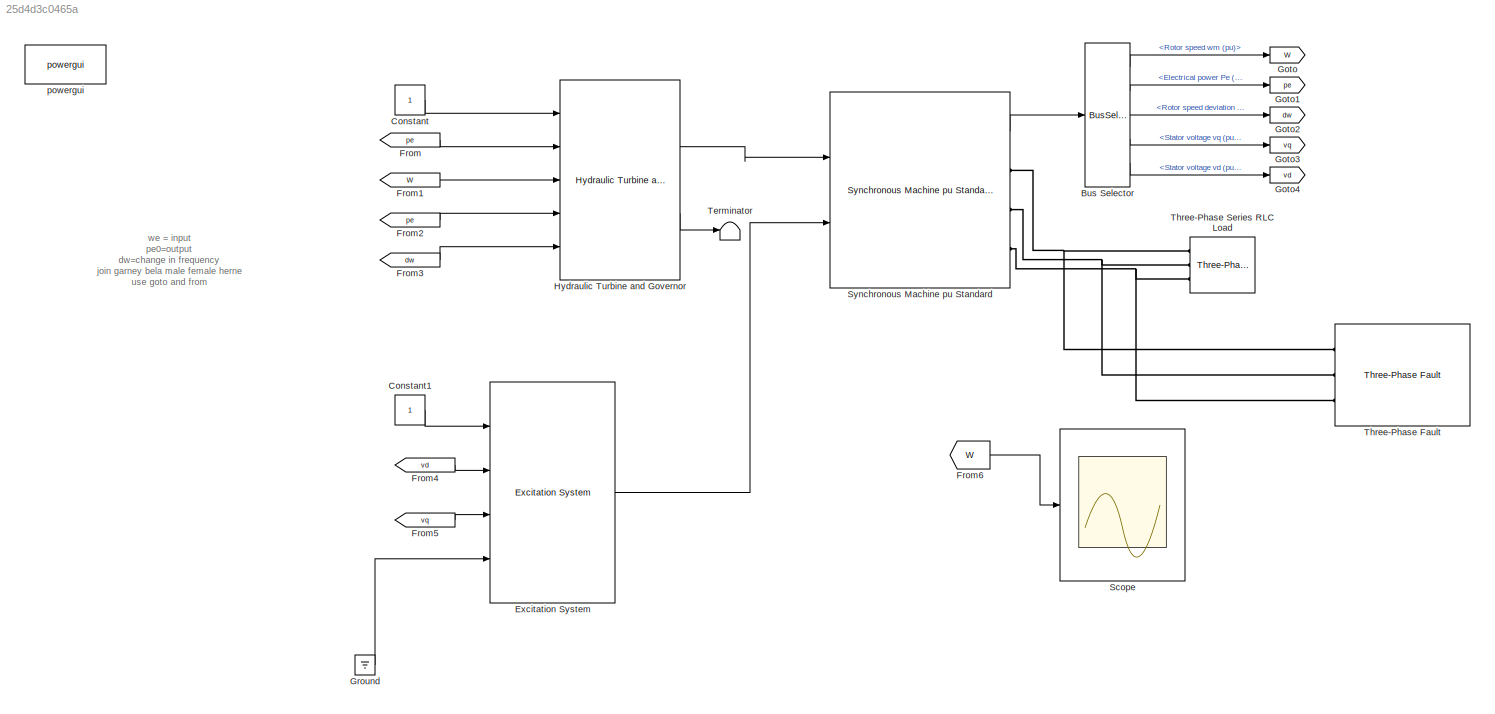
MODEL slx_25d4d3c0465a
KIND model
CONFIG AbsTol = auto
CONFIG EnableMultiTasking = off
CONFIG FixedStep = auto
CONFIG MaxStep = auto
CONFIG MinStep = auto
CONFIG RelTol = 1e-3
CONFIG SampleTimeConstraint = Unconstrained
CONFIG Solver = VariableStepAuto
CONFIG SolverName = VariableStepAuto
CONFIG StartTime = 0.0
CONFIG StopTime = 10.0
BLOCK [BusSelector] Bus Selector
  OutputAsBus = off
  OutputSignals = Mechanical.Rotor speed  wm  (pu),Mechanical.Electrical power  Pe (pu),Mechanical.Rotor speed deviation  dw (pu),dq0 components.Stator voltage  vq (pu),dq0 components.Stator voltage  vd (pu)
  Ports = [1, 5]
BLOCK [Constant] Constant
  SampleTime = 1/1000
BLOCK [Constant] Constant1
  SampleTime = 1/1000
BLOCK [Reference] Excitation System  REF=sps_avr/Excitation System
  Ports = [4, 1]
  SourceBlock = sps_avr/Excitation System
  SourceProductBaseCode = PS
  SourceProductName = Simscape Electrical
  SourceType = Excitation System
BLOCK [From] From
  GotoTag = pe
BLOCK [From] From1
  GotoTag = W
BLOCK [From] From2
  GotoTag = pe
BLOCK [From] From3
  GotoTag = dw
BLOCK [From] From4
  GotoTag = vd
BLOCK [From] From5
  GotoTag = vq
BLOCK [From] From6
  GotoTag = W
BLOCK [Goto] Goto
  GotoTag = W
BLOCK [Goto] Goto1
  GotoTag = pe
BLOCK [Goto] Goto2
  GotoTag = dw
BLOCK [Goto] Goto3
  GotoTag = vq
BLOCK [Goto] Goto4
  GotoTag = vd
BLOCK [Ground] Ground
BLOCK [Reference] Hydraulic Turbine and Governor  REF=powerlib/Machines/Hydraulic Turbine
and Governor
  Ports = [5, 2]
  SourceBlock = powerlib/Machines/Hydraulic Turbine\nand Governor
  SourceProductBaseCode = PS
  SourceProductName = Simscape Electrical
  SourceType = Hydraulic Turbine and Governor
BLOCK [Scope] Scope
  Floating = off
  NumInputPorts = 1
  Ports = [1]
  ScopeSpecificationString = Simulink.scopes.TimeScopeBlockCfg('CurrentConfiguration', extmgr.ConfigurationSet(extmgr.Configuration('Core','General UI',true),extmgr.Configuration('Core','Source UI',true),extmgr.Configuration('Sources','WiredSimulink',true),extmgr.Configuration('Visuals','Time Domain',true,'SerializedDisplays',{struct('MinYLimReal','-0.26311','MaxYLimReal','2.71936','YLabelReal','','MinYLimMag','0.00000','MaxY...<+1372ch>
BLOCK [Reference] Synchronous Machine pu Standard  REF=powerlib/Machines/Synchronous Machine
pu Standard
  Ports = [2, 1, 0, 0, 0, 0, 3]
  SourceBlock = powerlib/Machines/Synchronous Machine\npu Standard
  SourceProductBaseCode = PS
  SourceProductName = Simscape Electrical
  SourceType = Synchronous Machine
BLOCK [Terminator] Terminator
BLOCK [Reference] Three-Phase Fault  REF=powerlib/Elements/Three-Phase Fault
  Ports = [0, 0, 0, 0, 0, 3]
  SourceBlock = powerlib/Elements/Three-Phase Fault
  SourceProductBaseCode = PS
  SourceProductName = Simscape Electrical
  SourceType = Three-Phase Fault
BLOCK [Reference] Three-Phase Series RLC Load  REF=powerlib/Elements/Three-Phase
Series RLC Load
  AttributesFormatString = \n
  Ports = [0, 0, 0, 0, 0, 3]
  SourceBlock = powerlib/Elements/Three-Phase\nSeries RLC Load
  SourceProductBaseCode = PS
  SourceProductName = Simscape Electrical
  SourceType = Three-Phase Series RLC Load
BLOCK [Reference] powergui  REF=powerlib/powergui
  Ports = []
  Priority = 1
  SourceBlock = powerlib/powergui
  SourceProductBaseCode = PS
  SourceProductName = Simscape Electrical
  SourceType = PSB option menu block
ANNOTATION (root): we = input pe0=output dw=change in frequency join garney bela male female herne use goto and from
LINE Bus Selector:1 -> Goto:1
LINE Bus Selector:2 -> Goto1:1
LINE Bus Selector:3 -> Goto2:1
LINE Bus Selector:4 -> Goto3:1
LINE Bus Selector:5 -> Goto4:1
LINE Constant1:1 -> Excitation System:1
LINE Constant:1 -> Hydraulic Turbine and Governor:1
LINE Excitation System:1 -> Synchronous Machine pu Standard:2
LINE From1:1 -> Hydraulic Turbine and Governor:3
LINE From2:1 -> Hydraulic Turbine and Governor:4
LINE From3:1 -> Hydraulic Turbine and Governor:5
LINE From4:1 -> Excitation System:2
LINE From5:1 -> Excitation System:3
LINE From6:1 -> Scope:1
LINE From:1 -> Hydraulic Turbine and Governor:2
LINE Ground:1 -> Excitation System:4
LINE Hydraulic Turbine and Governor:1 -> Synchronous Machine pu Standard:1
LINE Hydraulic Turbine and Governor:2 -> Terminator:1
LINE Synchronous Machine pu Standard:1 -> Bus Selector:1
PNET net1: Synchronous Machine pu Standard:RConn1 -- Three-Phase Fault:LConn1 -- Three-Phase Series RLC Load:LConn1
PNET net2: Synchronous Machine pu Standard:RConn2 -- Three-Phase Fault:LConn2 -- Three-Phase Series RLC Load:LConn2
PNET net3: Synchronous Machine pu Standard:RConn3 -- Three-Phase Fault:LConn3 -- Three-Phase Series RLC Load:LConn3
note: PNET lines group multi-terminal physical nets as a canonical sorted terminal list (undirected conserving connections); 2-terminal nets keep the pairwise PLINE form
